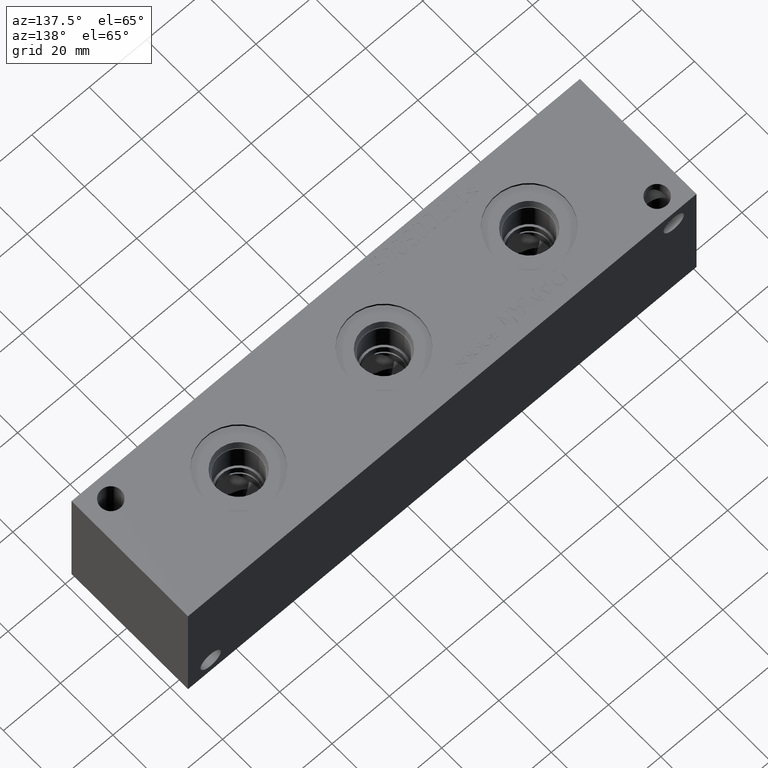
[diagram: clean part render]
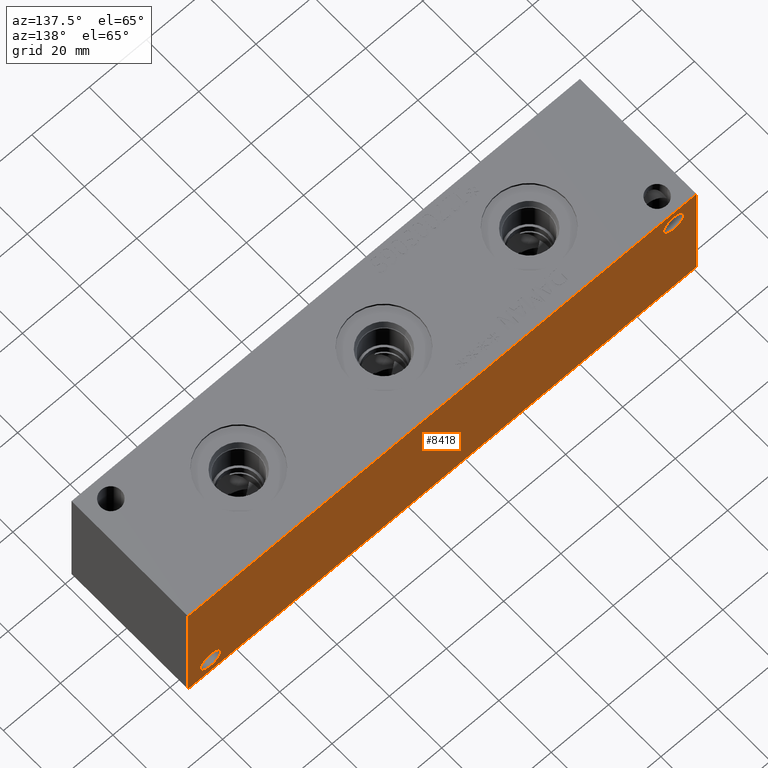
[diagram: same view with one face highlighted and labeled with its STEP entity id]
A machine part, auxiliary view. The second image highlights one B-rep face of the part: STEP entity #8418.
In plain terms, the highlighted planar face has unit normal (0, 1, 0).
Its self-contained STEP definition (entity closure, byte-faithful):
#284=CIRCLE('',#8894,3.5687);
#287=CIRCLE('',#8903,3.5687);
#372=FACE_BOUND('',#1528,.T.);
#373=FACE_BOUND('',#1529,.T.);
#604=PLANE('',#8966);
#1041=FACE_OUTER_BOUND('',#1527,.T.);
#1527=EDGE_LOOP('',(#7524,#7525,#7526,#7527));
#1528=EDGE_LOOP('',(#7528));
#1529=EDGE_LOOP('',(#7529));
#1808=LINE('',#13098,#2521);
#2251=LINE('',#14766,#2964);
#2252=LINE('',#14769,#2965);
#2253=LINE('',#14770,#2966);
#2521=VECTOR('',#9363,10.);
#2964=VECTOR('',#10738,10.);
#2965=VECTOR('',#10741,10.);
#2966=VECTOR('',#10742,10.);
#3547=VERTEX_POINT('',#13095);
#3548=VERTEX_POINT('',#13097);
#3971=VERTEX_POINT('',#14620);
#3976=VERTEX_POINT('',#14636);
#4010=VERTEX_POINT('',#14762);
#4012=VERTEX_POINT('',#14768);
#4490=EDGE_CURVE('',#3547,#3548,#1808,.T.);
#5125=EDGE_CURVE('',#3971,#3971,#284,.T.);
#5134=EDGE_CURVE('',#3976,#3976,#287,.T.);
#5191=EDGE_CURVE('',#4010,#3548,#2251,.T.);
#5192=EDGE_CURVE('',#4012,#4010,#2252,.T.);
#5193=EDGE_CURVE('',#4012,#3547,#2253,.T.);
#7524=ORIENTED_EDGE('',*,*,#5192,.T.);
#7525=ORIENTED_EDGE('',*,*,#5191,.T.);
#7526=ORIENTED_EDGE('',*,*,#4490,.F.);
#7527=ORIENTED_EDGE('',*,*,#5193,.F.);
#7528=ORIENTED_EDGE('',*,*,#5125,.T.);
#7529=ORIENTED_EDGE('',*,*,#5134,.T.);
#8418=ADVANCED_FACE('',(#1041,#372,#373),#604,.T.);
#8894=AXIS2_PLACEMENT_3D('',#14622,#10572,#10573);
#8903=AXIS2_PLACEMENT_3D('',#14638,#10592,#10593);
#8966=AXIS2_PLACEMENT_3D('',#14767,#10739,#10740);
#9363=DIRECTION('',(-1.,0.,0.));
#10572=DIRECTION('center_axis',(0.,-1.,0.));
#10573=DIRECTION('ref_axis',(1.,0.,0.));
#10592=DIRECTION('center_axis',(0.,-1.,0.));
#10593=DIRECTION('ref_axis',(1.,0.,0.));
#10738=DIRECTION('',(0.,0.,1.));
#10739=DIRECTION('center_axis',(0.,1.,0.));
#10740=DIRECTION('ref_axis',(-1.,0.,0.));
#10741=DIRECTION('',(-1.,0.,0.));
#10742=DIRECTION('',(0.,0.,1.));
#13095=CARTESIAN_POINT('',(177.8,44.45,44.45));
#13097=CARTESIAN_POINT('',(0.,44.45,44.45));
#13098=CARTESIAN_POINT('',(177.8,44.45,44.45));
#14620=CARTESIAN_POINT('',(4.3561,44.45,38.1));
#14622=CARTESIAN_POINT('Origin',(7.9248,44.45,38.1));
#14636=CARTESIAN_POINT('',(166.3065,44.45,6.35));
#14638=CARTESIAN_POINT('Origin',(169.8752,44.45,6.35));
#14762=CARTESIAN_POINT('',(0.,44.45,0.));
#14766=CARTESIAN_POINT('',(0.,44.45,0.));
#14767=CARTESIAN_POINT('Origin',(177.8,44.45,0.));
#14768=CARTESIAN_POINT('',(177.8,44.45,0.));
#14769=CARTESIAN_POINT('',(177.8,44.45,0.));
#14770=CARTESIAN_POINT('',(177.8,44.45,0.));